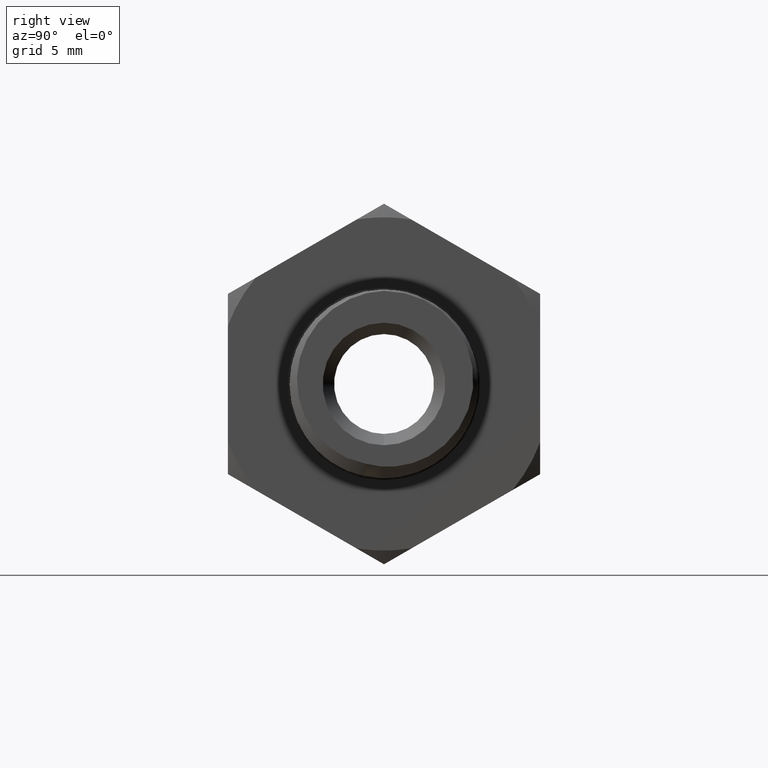
[diagram: clean part render]
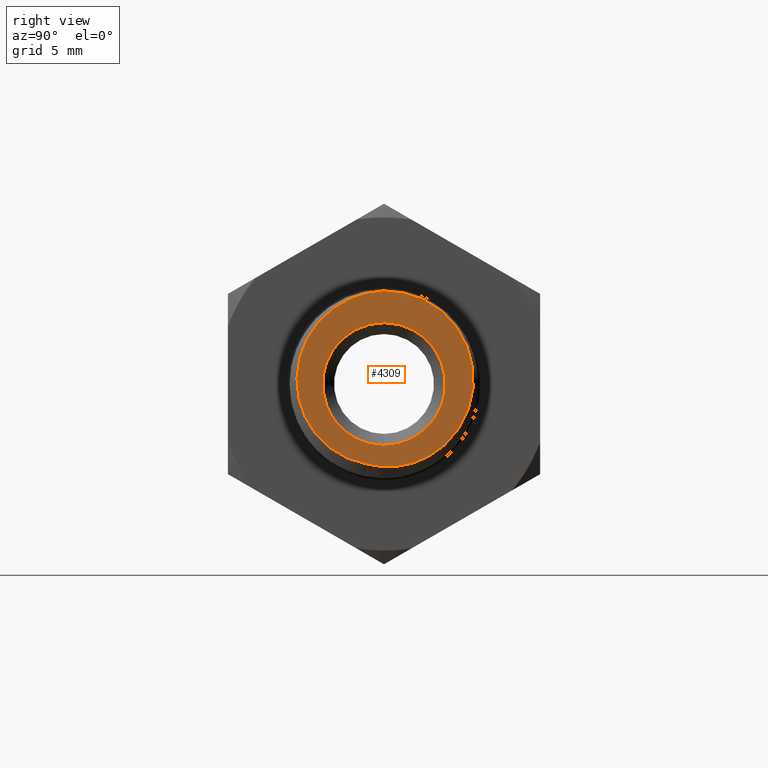
[diagram: same view with one face highlighted and labeled with its STEP entity id]
A machine part, right view. The second image highlights one B-rep face of the part: STEP entity #4309.
In plain terms, the highlighted planar face has unit normal (1, 0, 0).
Its self-contained STEP definition (entity closure, byte-faithful):
#79 = CARTESIAN_POINT ( 'NONE',  ( 0.5340000000000000300, -0.06267961156233953200, -0.1703418456745508200 ) ) ;
#85 = CARTESIAN_POINT ( 'NONE',  ( 0.5340000000000000300, 0.0000000000000000000, 0.0000000000000000000 ) ) ;
#109 = EDGE_LOOP ( 'NONE', ( #4228, #3919, #2575 ) ) ;
#120 = EDGE_CURVE ( 'NONE', #2174, #1640, #398, .T. ) ;
#133 = CARTESIAN_POINT ( 'NONE',  ( 0.5340000000000001400, 0.1971403705737067900, 0.008091743999796967600 ) ) ;
#147 = CARTESIAN_POINT ( 'NONE',  ( 0.5340000000000001400, 0.09689555140438441100, -0.1604543496393254500 ) ) ;
#158 = CARTESIAN_POINT ( 'NONE',  ( 0.5340000000000000300, 0.1272688353985263200, 0.1607098115744735900 ) ) ;
#381 = CARTESIAN_POINT ( 'NONE',  ( 0.5339999999999990300, -0.1891405748015870200, 0.04201406497275423500 ) ) ;
#398 = B_SPLINE_CURVE_WITH_KNOTS ( 'NONE', 3,
 ( #1063, #888, #79, #1317, #2678, #2856, #2760, #2421, #1464, #2222, #2353, #608, #822, #571, #555, #512, #493, #381, #471, #3144, #1744, #5716, #3280, #1321, #2624, #869, #2764, #2802, #1705, #849, #3510, #3059, #955, #3262 ),
 .UNSPECIFIED., .F., .F.,
 ( 4, 2, 2, 2, 2, 2, 2, 2, 2, 2, 2, 2, 2, 2, 2, 2, 4 ),
 ( 2.304637428047072300E-017, 0.0008886699990130980800, 0.001777339998026172500, 0.002666009997039247200, 0.003554679996052321200, 0.004443349995065395600, 0.005332019994078469200, 0.006220689993091541900, 0.007109359992104615500, 0.007998029991117689900, 0.008886699990130761700, 0.009775369989143835300, 0.01066403998815690900, 0.01155270998716998400, 0.01244137998618305600, 0.01333004998519613000, 0.01421871998420920300 ),
 .UNSPECIFIED. ) ;
#434 = CIRCLE ( 'NONE', #1471, 0.2049999999999999900 ) ;
#471 = CARTESIAN_POINT ( 'NONE',  ( 0.5340000000000000300, -0.1867509611957391700, 0.05358040692747000800 ) ) ;
#493 = CARTESIAN_POINT ( 'NONE',  ( 0.5339999999999988100, -0.1917985033755880100, 0.01882915176311665600 ) ) ;
#512 = CARTESIAN_POINT ( 'NONE',  ( 0.5340000000000001400, -0.1920992515631513900, 0.007100151291231865700 ) ) ;
#539 = DIRECTION ( 'NONE',  ( 0.0000000000000000000, 0.0000000000000000000, -1.000000000000000000 ) ) ;
#555 = CARTESIAN_POINT ( 'NONE',  ( 0.5340000000000000300, -0.1905122438985531500, -0.01646509371845833500 ) ) ;
#571 = CARTESIAN_POINT ( 'NONE',  ( 0.5340000000000001400, -0.1886309382380809700, -0.02799540368509416400 ) ) ;
#585 = CARTESIAN_POINT ( 'NONE',  ( 0.5340000000000001400, 0.1943255339664018700, -0.02428110509272807200 ) ) ;
#605 = CARTESIAN_POINT ( 'NONE',  ( 0.5340000000000003600, 0.06690522635523274400, -0.1733078401039330800 ) ) ;
#608 = CARTESIAN_POINT ( 'NONE',  ( 0.5340000000000000300, -0.1787439228639075600, -0.06171677726000017500 ) ) ;
#618 = CARTESIAN_POINT ( 'NONE',  ( 0.5340000000000000300, 0.0000000000000000000, 0.0000000000000000000 ) ) ;
#670 = FACE_BOUND ( 'NONE', #867, .T. ) ;
#709 = DIRECTION ( 'NONE',  ( 1.000000000000000000, 0.0000000000000000000, 0.0000000000000000000 ) ) ;
#822 = CARTESIAN_POINT ( 'NONE',  ( 0.5340000000000001400, -0.1827728825782062900, -0.05056999126748298900 ) ) ;
#849 = CARTESIAN_POINT ( 'NONE',  ( 0.5340000000000002500, -0.05771087392883816900, 0.1945131219373142700 ) ) ;
#867 = EDGE_LOOP ( 'NONE', ( #3558, #2310 ) ) ;
#869 = CARTESIAN_POINT ( 'NONE',  ( 0.5339999999999995900, -0.1189679526084925400, 0.1605831837270999300 ) ) ;
#888 = CARTESIAN_POINT ( 'NONE',  ( 0.5339999999999998100, -0.05142133606835875400, -0.1734943136042669000 ) ) ;
#943 = CIRCLE ( 'NONE', #4541, 0.1349999999999998700 ) ;
#955 = CARTESIAN_POINT ( 'NONE',  ( 0.5340000000000002500, -0.01180924322244414300, 0.2045328004910798600 ) ) ;
#1045 = CARTESIAN_POINT ( 'NONE',  ( 0.5340000000000000300, 0.1861273581924751100, -0.05566343753387011100 ) ) ;
#1060 = CARTESIAN_POINT ( 'NONE',  ( 0.5340000000000003600, 0.03544642175491486600, -0.1806797057162429200 ) ) ;
#1063 = CARTESIAN_POINT ( 'NONE',  ( 0.5340000000000000300, -0.03977128524400896200, -0.1755512599500205500 ) ) ;
#1074 = DIRECTION ( 'NONE',  ( 0.0000000000000000000, 0.0000000000000000000, -1.000000000000000000 ) ) ;
#1114 = CARTESIAN_POINT ( 'NONE',  ( 0.5340000000000000300, 5.021051876504148100E-017, 0.2049999999999999900 ) ) ;
#1317 = CARTESIAN_POINT ( 'NONE',  ( 0.5340000000000001400, -0.08444477162130507900, -0.1619357949237726600 ) ) ;
#1321 = CARTESIAN_POINT ( 'NONE',  ( 0.5340000000000000300, -0.1441760466201800500, 0.1363017051756533800 ) ) ;
#1464 = CARTESIAN_POINT ( 'NONE',  ( 0.5340000000000000300, -0.1490286196328309000, -0.1119320353064254400 ) ) ;
#1471 = AXIS2_PLACEMENT_3D ( 'NONE', #3462, #709, #3909 ) ;
#1482 = EDGE_CURVE ( 'NONE', #1556, #2834, #943, .T. ) ;
#1497 = CARTESIAN_POINT ( 'NONE',  ( 0.5339999999999999200, 0.1727912288541163800, -0.08525298209494451600 ) ) ;
#1501 = CARTESIAN_POINT ( 'NONE',  ( 0.5340000000000000300, 0.0000000000000000000, -0.1349999999999998700 ) ) ;
#1513 = CARTESIAN_POINT ( 'NONE',  ( 0.5340000000000001400, 0.002854175957686786700, -0.1824804569539427200 ) ) ;
#1556 = VERTEX_POINT ( 'NONE', #1501 ) ;
#1624 = AXIS2_PLACEMENT_3D ( 'NONE', #1934, #1986, #5110 ) ;
#1640 = VERTEX_POINT ( 'NONE', #1114 ) ;
#1705 = CARTESIAN_POINT ( 'NONE',  ( 0.5340000000000000300, -0.07934832065292278500, 0.1856339050671605700 ) ) ;
#1744 = CARTESIAN_POINT ( 'NONE',  ( 0.5339999999999999200, -0.1755161599164561400, 0.08692113491547537300 ) ) ;
#1899 = FACE_OUTER_BOUND ( 'NONE', #109, .T. ) ;
#1934 = CARTESIAN_POINT ( 'NONE',  ( 0.5340000000000000300, 0.0000000000000000000, 0.0000000000000000000 ) ) ;
#1945 = CARTESIAN_POINT ( 'NONE',  ( 0.5339999999999999200, 0.1576364823701855200, 0.1299297163121984900 ) ) ;
#1964 = CARTESIAN_POINT ( 'NONE',  ( 0.5340000000000002500, 0.1546602533227321700, -0.1122093104674895400 ) ) ;
#1979 = CARTESIAN_POINT ( 'NONE',  ( 0.5339999999999999200, -0.02925199998954600500, -0.1785194193889594600 ) ) ;
#1986 = DIRECTION ( 'NONE',  ( 1.000000000000000000, 0.0000000000000000000, 0.0000000000000000000 ) ) ;
#2041 = VERTEX_POINT ( 'NONE', #158 ) ;
#2174 = VERTEX_POINT ( 'NONE', #3883 ) ;
#2222 = CARTESIAN_POINT ( 'NONE',  ( 0.5339999999999998100, -0.1627607206561896300, -0.09300575873728991700 ) ) ;
#2310 = ORIENTED_EDGE ( 'NONE', *, *, #5242, .T. ) ;
#2353 = CARTESIAN_POINT ( 'NONE',  ( 0.5340000000000000300, -0.1687093103519271300, -0.08296618102258550300 ) ) ;
#2404 = CARTESIAN_POINT ( 'NONE',  ( 0.5340000000000000300, 0.1878038768632628300, 0.07232392440640868200 ) ) ;
#2420 = CARTESIAN_POINT ( 'NONE',  ( 0.5340000000000001400, 0.1322889450602763900, -0.1357360595050552100 ) ) ;
#2421 = CARTESIAN_POINT ( 'NONE',  ( 0.5339999999999998100, -0.1411602371584720400, -0.1208783098337702200 ) ) ;
#2438 = EDGE_CURVE ( 'NONE', #2041, #2174, #5383, .T. ) ;
#2575 = ORIENTED_EDGE ( 'NONE', *, *, #2661, .T. ) ;
#2624 = CARTESIAN_POINT ( 'NONE',  ( 0.5339999999999998100, -0.1362524216937519800, 0.1448601190956030100 ) ) ;
#2661 = EDGE_CURVE ( 'NONE', #2041, #1640, #434, .T. ) ;
#2678 = CARTESIAN_POINT ( 'NONE',  ( 0.5339999999999999200, -0.09505525705773032500, -0.1566113651698701800 ) ) ;
#2760 = CARTESIAN_POINT ( 'NONE',  ( 0.5339999999999994800, -0.1241333445848718100, -0.1369210885641322400 ) ) ;
#2764 = CARTESIAN_POINT ( 'NONE',  ( 0.5340000000000002500, -0.1095028993943784300, 0.1677911469656236400 ) ) ;
#2802 = CARTESIAN_POINT ( 'NONE',  ( 0.5340000000000002500, -0.08970727284972303300, 0.1802905854419770100 ) ) ;
#2834 = VERTEX_POINT ( 'NONE', #3453 ) ;
#2855 = CARTESIAN_POINT ( 'NONE',  ( 0.5340000000000000300, 0.1960774616988556200, 0.02959962698785109600 ) ) ;
#2856 = CARTESIAN_POINT ( 'NONE',  ( 0.5339999999999998100, -0.1149201265331086400, -0.1440773159136017900 ) ) ;
#2874 = CARTESIAN_POINT ( 'NONE',  ( 0.5340000000000000300, 0.1062261202916268500, -0.1550825034299180300 ) ) ;
#3059 = CARTESIAN_POINT ( 'NONE',  ( 0.5340000000000001400, -0.02344039479530684800, 0.2030402996181310000 ) ) ;
#3144 = CARTESIAN_POINT ( 'NONE',  ( 0.5340000000000001400, -0.1799075479474570900, 0.07610797874436747700 ) ) ;
#3262 = CARTESIAN_POINT ( 'NONE',  ( 0.5340000000000000300, 5.021051876504148100E-017, 0.2049999999999999900 ) ) ;
#3280 = CARTESIAN_POINT ( 'NONE',  ( 0.5340000000000001400, -0.1584905880536474400, 0.1176985121688965100 ) ) ;
#3285 = DIRECTION ( 'NONE',  ( -1.000000000000000000, -0.0000000000000000000, -0.0000000000000000000 ) ) ;
#3333 = CARTESIAN_POINT ( 'NONE',  ( 0.5340000000000000300, 0.1968193992935682000, -0.002683661758711386200 ) ) ;
#3353 = CARTESIAN_POINT ( 'NONE',  ( 0.5340000000000000300, 0.07721538128857537200, -0.1695883313155188700 ) ) ;
#3453 = CARTESIAN_POINT ( 'NONE',  ( 0.5340000000000000300, 1.653273178848925300E-017, 0.1349999999999998700 ) ) ;
#3462 = CARTESIAN_POINT ( 'NONE',  ( 0.5340000000000000300, 0.0000000000000000000, 0.0000000000000000000 ) ) ;
#3510 = CARTESIAN_POINT ( 'NONE',  ( 0.5340000000000001400, -0.04635475141082331200, 0.1980521155059059000 ) ) ;
#3538 = CIRCLE ( 'NONE', #4264, 0.1349999999999998700 ) ;
#3558 = ORIENTED_EDGE ( 'NONE', *, *, #1482, .T. ) ;
#3789 = CARTESIAN_POINT ( 'NONE',  ( 0.5339999999999999200, 0.1921543250843157600, -0.03498776921360228400 ) ) ;
#3806 = CARTESIAN_POINT ( 'NONE',  ( 0.5340000000000002500, 0.04606844806467817000, -0.1788294944842200900 ) ) ;
#3819 = DIRECTION ( 'NONE',  ( -1.000000000000000000, -0.0000000000000000000, -0.0000000000000000000 ) ) ;
#3883 = CARTESIAN_POINT ( 'NONE',  ( 0.5340000000000000300, -0.03977128524400896200, -0.1755512599500205500 ) ) ;
#3909 = DIRECTION ( 'NONE',  ( 0.0000000000000000000, 0.0000000000000000000, -1.000000000000000000 ) ) ;
#3919 = ORIENTED_EDGE ( 'NONE', *, *, #2438, .F. ) ;
#4208 = CARTESIAN_POINT ( 'NONE',  ( 0.5340000000000000300, 0.1272688353985263200, 0.1607098115744735900 ) ) ;
#4223 = CARTESIAN_POINT ( 'NONE',  ( 0.5339999999999999200, 0.1437589129841008700, 0.1464050292554831300 ) ) ;
#4228 = ORIENTED_EDGE ( 'NONE', *, *, #120, .F. ) ;
#4237 = CARTESIAN_POINT ( 'NONE',  ( 0.5339999999999999200, 0.1822630508324985000, -0.06571923538491220000 ) ) ;
#4254 = CARTESIAN_POINT ( 'NONE',  ( 0.5340000000000004700, 0.01378469496243763500, -0.1825123906867918100 ) ) ;
#4264 = AXIS2_PLACEMENT_3D ( 'NONE', #618, #3819, #1074 ) ;
#4309 = ADVANCED_FACE ( 'NONE', ( #670, #1899 ), #4682, .T. ) ;
#4541 = AXIS2_PLACEMENT_3D ( 'NONE', #85, #3285, #539 ) ;
#4663 = CARTESIAN_POINT ( 'NONE',  ( 0.5340000000000002500, 0.1671925060852068900, -0.09466764811926443900 ) ) ;
#4677 = CARTESIAN_POINT ( 'NONE',  ( 0.5340000000000001400, -0.01862127032161966400, -0.1804828394961775500 ) ) ;
#4682 = PLANE ( 'NONE',  #1624 ) ;
#5068 = CARTESIAN_POINT ( 'NONE',  ( 0.5339999999999999200, 0.1799179328738309300, 0.09243142698978200300 ) ) ;
#5085 = CARTESIAN_POINT ( 'NONE',  ( 0.5340000000000000300, 0.1476855545083739200, -0.1204276812702814600 ) ) ;
#5104 = CARTESIAN_POINT ( 'NONE',  ( 0.5340000000000000300, -0.03977128524400896200, -0.1755512599500205500 ) ) ;
#5110 = DIRECTION ( 'NONE',  ( 0.0000000000000000000, 0.0000000000000000000, -1.000000000000000000 ) ) ;
#5242 = EDGE_CURVE ( 'NONE', #2834, #1556, #3538, .T. ) ;
#5383 = B_SPLINE_CURVE_WITH_KNOTS ( 'NONE', 3,
 ( #4208, #4223, #1945, #5068, #2404, #5509, #2855, #133, #3333, #585, #3789, #1045, #4237, #1497, #4663, #1964, #5085, #2420, #5523, #2874, #147, #3353, #605, #3806, #1060, #4254, #1513, #4677, #1979, #5104 ),
 .UNSPECIFIED., .F., .F.,
 ( 4, 2, 2, 2, 2, 2, 2, 2, 2, 2, 2, 2, 2, 2, 4 ),
 ( 0.0000000000000000000, 0.001641401101084431600, 0.003282802202168863300, 0.004103502752711079400, 0.004924203303253294300, 0.005744903853795510000, 0.006565604404337724800, 0.007386304954879940500, 0.008207005505422157100, 0.009027706055964372000, 0.009848406606506586800, 0.01066910715704880200, 0.01148980770759101500, 0.01231050825813323100, 0.01313120880867544400 ),
 .UNSPECIFIED. ) ;
#5509 = CARTESIAN_POINT ( 'NONE',  ( 0.5340000000000000300, 0.1946711688619717500, 0.04038471294553659700 ) ) ;
#5523 = CARTESIAN_POINT ( 'NONE',  ( 0.5340000000000000300, 0.1238910712930050300, -0.1427651881874760500 ) ) ;
#5716 = CARTESIAN_POINT ( 'NONE',  ( 0.5340000000000002500, -0.1648461296531615900, 0.1076704036648077800 ) ) ;